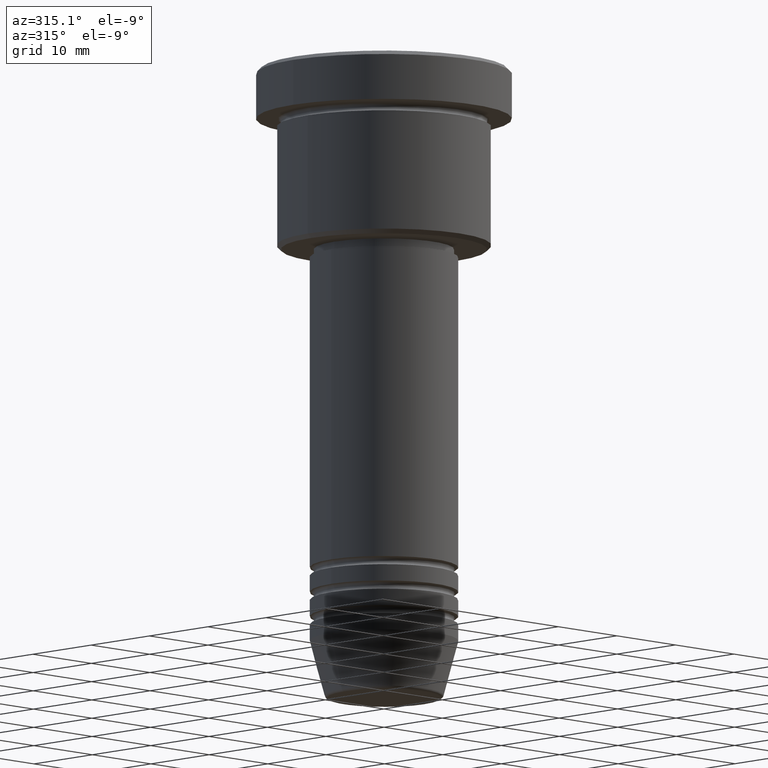
[diagram: clean part render]
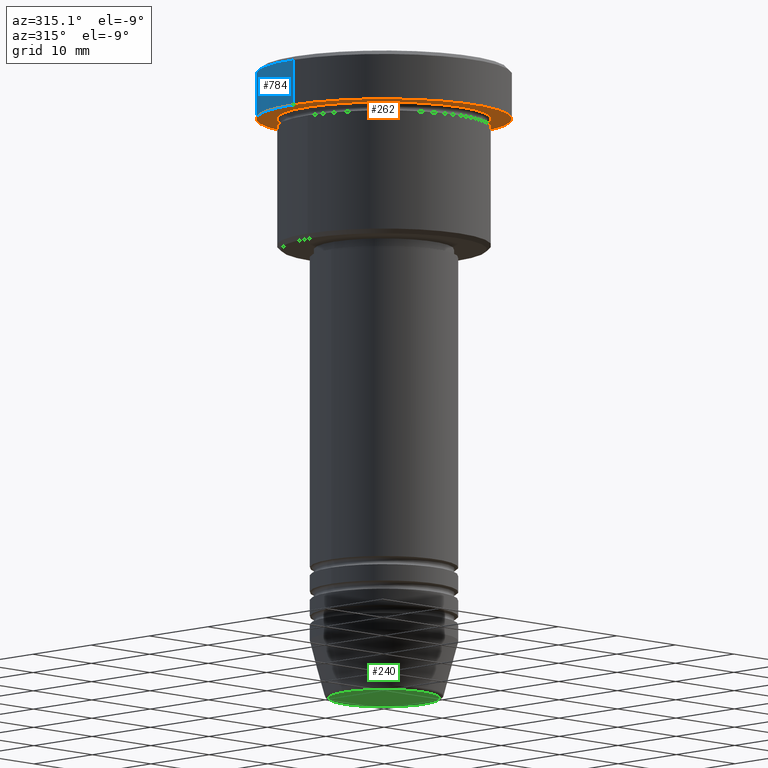
[diagram: same view with three faces highlighted in distinct colors, each labeled with its STEP entity id]
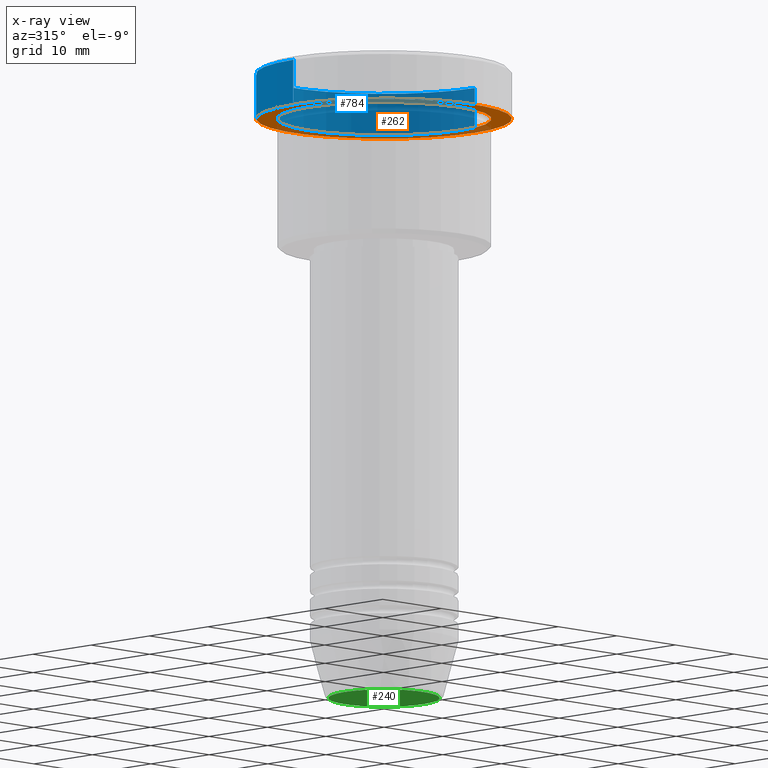
[diagram: x-ray of the same camera — body ghosted, the three highlighted faces saturated]
A machine part, auxiliary view with three faces highlighted in distinct colors.
The next image is the same camera in x-ray (body ghosted, the three faces saturated) — at least one of them is partly hidden behind the body in this view.
Their STEP definitions:

[orange] entity #262 — the highlighted planar face has unit normal (0, 0, -1).
#23 = AXIS2_PLACEMENT_3D ( 'NONE', #802, #714, #625 ) ;
#25 = CIRCLE ( 'NONE', #279, 13.00000000000000000 ) ;
#33 = VERTEX_POINT ( 'NONE', #498 ) ;
#36 = CARTESIAN_POINT ( 'NONE',  ( 0.000000000000000000, 0.000000000000000000, -5.999999999999995559 ) ) ;
#41 = ORIENTED_EDGE ( 'NONE', *, *, #1043, .T. ) ;
#46 = CIRCLE ( 'NONE', #1058, 13.00000000000000000 ) ;
#74 = EDGE_CURVE ( 'NONE', #33, #748, #1072, .T. ) ;
#127 = CIRCLE ( 'NONE', #1132, 15.50000000000000000 ) ;
#133 = DIRECTION ( 'NONE',  ( -0.000000000000000000, -0.000000000000000000, 1.000000000000000000 ) ) ;
#179 = CARTESIAN_POINT ( 'NONE',  ( 13.00000000000000000, 1.592040838891559095E-15, -5.999999999999994671 ) ) ;
#198 = CARTESIAN_POINT ( 'NONE',  ( 0.000000000000000000, 0.000000000000000000, -5.999999999999995559 ) ) ;
#211 = DIRECTION ( 'NONE',  ( -1.000000000000000000, 0.000000000000000000, 0.000000000000000000 ) ) ;
#216 = EDGE_LOOP ( 'NONE', ( #41, #776 ) ) ;
#220 = PLANE ( 'NONE',  #23 ) ;
#237 = VERTEX_POINT ( 'NONE', #806 ) ;
#252 = CARTESIAN_POINT ( 'NONE',  ( -15.50000000000000000, 1.898202538678397557E-15, -5.999999999999995559 ) ) ;
#262 = ADVANCED_FACE ( 'NONE', ( #399, #762 ), #220, .T. ) ;
#279 = AXIS2_PLACEMENT_3D ( 'NONE', #36, #842, #497 ) ;
#365 = DIRECTION ( 'NONE',  ( -0.000000000000000000, -0.000000000000000000, 1.000000000000000000 ) ) ;
#399 = FACE_BOUND ( 'NONE', #216, .T. ) ;
#497 = DIRECTION ( 'NONE',  ( -1.000000000000000000, 0.000000000000000000, 0.000000000000000000 ) ) ;
#498 = CARTESIAN_POINT ( 'NONE',  ( 15.50000000000000000, 0.000000000000000000, -5.999999999999995559 ) ) ;
#551 = DIRECTION ( 'NONE',  ( 1.000000000000000000, 0.000000000000000000, 0.000000000000000000 ) ) ;
#559 = EDGE_LOOP ( 'NONE', ( #846, #712 ) ) ;
#604 = EDGE_CURVE ( 'NONE', #856, #237, #25, .T. ) ;
#625 = DIRECTION ( 'NONE',  ( -1.000000000000000000, 0.000000000000000000, -0.000000000000000000 ) ) ;
#712 = ORIENTED_EDGE ( 'NONE', *, *, #954, .F. ) ;
#714 = DIRECTION ( 'NONE',  ( 0.000000000000000000, 0.000000000000000000, -1.000000000000000000 ) ) ;
#748 = VERTEX_POINT ( 'NONE', #252 ) ;
#762 = FACE_OUTER_BOUND ( 'NONE', #559, .T. ) ;
#776 = ORIENTED_EDGE ( 'NONE', *, *, #604, .T. ) ;
#802 = CARTESIAN_POINT ( 'NONE',  ( 0.000000000000000000, 15.50000000000000000, -5.999999999999995559 ) ) ;
#806 = CARTESIAN_POINT ( 'NONE',  ( -13.00000000000000000, 0.000000000000000000, -5.999999999999994671 ) ) ;
#842 = DIRECTION ( 'NONE',  ( -0.000000000000000000, -0.000000000000000000, 1.000000000000000000 ) ) ;
#845 = AXIS2_PLACEMENT_3D ( 'NONE', #1146, #970, #886 ) ;
#846 = ORIENTED_EDGE ( 'NONE', *, *, #74, .F. ) ;
#856 = VERTEX_POINT ( 'NONE', #179 ) ;
#886 = DIRECTION ( 'NONE',  ( 1.000000000000000000, 0.000000000000000000, 0.000000000000000000 ) ) ;
#954 = EDGE_CURVE ( 'NONE', #748, #33, #127, .T. ) ;
#970 = DIRECTION ( 'NONE',  ( -0.000000000000000000, -0.000000000000000000, 1.000000000000000000 ) ) ;
#1043 = EDGE_CURVE ( 'NONE', #237, #856, #46, .T. ) ;
#1058 = AXIS2_PLACEMENT_3D ( 'NONE', #198, #133, #211 ) ;
#1072 = CIRCLE ( 'NONE', #845, 15.50000000000000000 ) ;
#1132 = AXIS2_PLACEMENT_3D ( 'NONE', #1179, #365, #551 ) ;
#1146 = CARTESIAN_POINT ( 'NONE',  ( 0.000000000000000000, 0.000000000000000000, -5.999999999999995559 ) ) ;
#1179 = CARTESIAN_POINT ( 'NONE',  ( 0.000000000000000000, 0.000000000000000000, -5.999999999999995559 ) ) ;

[blue] entity #784 — the highlighted cylindrical surface (partial cylindrical patch) has radius 15.5 mm, axis along (-0, -0, 1).
#5 = AXIS2_PLACEMENT_3D ( 'NONE', #439, #968, #697 ) ;
#15 = DIRECTION ( 'NONE',  ( 1.000000000000000000, 0.000000000000000000, 0.000000000000000000 ) ) ;
#33 = VERTEX_POINT ( 'NONE', #498 ) ;
#47 = FACE_OUTER_BOUND ( 'NONE', #407, .T. ) ;
#52 = CYLINDRICAL_SURFACE ( 'NONE', #5, 15.50000000000000000 ) ;
#74 = EDGE_CURVE ( 'NONE', #33, #748, #1072, .T. ) ;
#112 = EDGE_CURVE ( 'NONE', #482, #850, #1053, .T. ) ;
#182 = VECTOR ( 'NONE', #930, 1000.000000000000000 ) ;
#252 = CARTESIAN_POINT ( 'NONE',  ( -15.50000000000000000, 1.898202538678397557E-15, -5.999999999999995559 ) ) ;
#263 = ORIENTED_EDGE ( 'NONE', *, *, #630, .T. ) ;
#268 = CARTESIAN_POINT ( 'NONE',  ( 0.000000000000000000, 0.000000000000000000, -0.4999999999999987232 ) ) ;
#407 = EDGE_LOOP ( 'NONE', ( #875, #263, #1164, #1156 ) ) ;
#439 = CARTESIAN_POINT ( 'NONE',  ( 0.000000000000000000, 0.000000000000000000, 0.000000000000000000 ) ) ;
#482 = VERTEX_POINT ( 'NONE', #648 ) ;
#498 = CARTESIAN_POINT ( 'NONE',  ( 15.50000000000000000, 0.000000000000000000, -5.999999999999995559 ) ) ;
#540 = AXIS2_PLACEMENT_3D ( 'NONE', #268, #1170, #15 ) ;
#565 = CARTESIAN_POINT ( 'NONE',  ( -15.50000000000000000, 1.898202538678397557E-15, 0.000000000000000000 ) ) ;
#572 = DIRECTION ( 'NONE',  ( -0.000000000000000000, -0.000000000000000000, 1.000000000000000000 ) ) ;
#630 = EDGE_CURVE ( 'NONE', #748, #482, #1133, .T. ) ;
#648 = CARTESIAN_POINT ( 'NONE',  ( -15.50000000000000000, 1.898202538678397557E-15, -0.4999999999999987232 ) ) ;
#657 = VECTOR ( 'NONE', #572, 1000.000000000000000 ) ;
#697 = DIRECTION ( 'NONE',  ( 1.000000000000000000, 0.000000000000000000, 0.000000000000000000 ) ) ;
#748 = VERTEX_POINT ( 'NONE', #252 ) ;
#753 = LINE ( 'NONE', #932, #657 ) ;
#784 = ADVANCED_FACE ( 'NONE', ( #47 ), #52, .T. ) ;
#845 = AXIS2_PLACEMENT_3D ( 'NONE', #1146, #970, #886 ) ;
#850 = VERTEX_POINT ( 'NONE', #1174 ) ;
#875 = ORIENTED_EDGE ( 'NONE', *, *, #74, .T. ) ;
#886 = DIRECTION ( 'NONE',  ( 1.000000000000000000, 0.000000000000000000, 0.000000000000000000 ) ) ;
#930 = DIRECTION ( 'NONE',  ( -0.000000000000000000, -0.000000000000000000, 1.000000000000000000 ) ) ;
#932 = CARTESIAN_POINT ( 'NONE',  ( 15.50000000000000000, 0.000000000000000000, 0.000000000000000000 ) ) ;
#968 = DIRECTION ( 'NONE',  ( -0.000000000000000000, -0.000000000000000000, 1.000000000000000000 ) ) ;
#970 = DIRECTION ( 'NONE',  ( -0.000000000000000000, -0.000000000000000000, 1.000000000000000000 ) ) ;
#1053 = CIRCLE ( 'NONE', #540, 15.50000000000000000 ) ;
#1067 = EDGE_CURVE ( 'NONE', #33, #850, #753, .T. ) ;
#1072 = CIRCLE ( 'NONE', #845, 15.50000000000000000 ) ;
#1133 = LINE ( 'NONE', #565, #182 ) ;
#1146 = CARTESIAN_POINT ( 'NONE',  ( 0.000000000000000000, 0.000000000000000000, -5.999999999999995559 ) ) ;
#1156 = ORIENTED_EDGE ( 'NONE', *, *, #1067, .F. ) ;
#1164 = ORIENTED_EDGE ( 'NONE', *, *, #112, .T. ) ;
#1170 = DIRECTION ( 'NONE',  ( 0.000000000000000000, 0.000000000000000000, -1.000000000000000000 ) ) ;
#1174 = CARTESIAN_POINT ( 'NONE',  ( 15.50000000000000000, 0.000000000000000000, -0.4999999999999987232 ) ) ;

[green] entity #240 — the highlighted planar face has unit normal (0, -0, 1).
#8 = DIRECTION ( 'NONE',  ( 0.000000000000000000, 0.000000000000000000, -1.000000000000000000 ) ) ;
#20 = DIRECTION ( 'NONE',  ( 0.000000000000000000, 0.000000000000000000, -1.000000000000000000 ) ) ;
#108 = DIRECTION ( 'NONE',  ( 0.000000000000000000, -0.000000000000000000, 1.000000000000000000 ) ) ;
#204 = EDGE_LOOP ( 'NONE', ( #941, #1028 ) ) ;
#240 = ADVANCED_FACE ( 'NONE', ( #526 ), #659, .F. ) ;
#330 = CARTESIAN_POINT ( 'NONE',  ( -6.740692158992653837, 8.550696569392682723E-16, -77.00000000000001421 ) ) ;
#356 = CIRCLE ( 'NONE', #392, 6.740692158992653837 ) ;
#392 = AXIS2_PLACEMENT_3D ( 'NONE', #738, #8, #722 ) ;
#396 = CARTESIAN_POINT ( 'NONE',  ( 6.740692158992653837, 0.000000000000000000, -77.00000000000001421 ) ) ;
#475 = CARTESIAN_POINT ( 'NONE',  ( 0.000000000000000000, 0.000000000000000000, -77.00000000000001421 ) ) ;
#526 = FACE_OUTER_BOUND ( 'NONE', #204, .T. ) ;
#616 = EDGE_CURVE ( 'NONE', #1089, #704, #830, .T. ) ;
#659 = PLANE ( 'NONE',  #1111 ) ;
#691 = AXIS2_PLACEMENT_3D ( 'NONE', #475, #20, #750 ) ;
#704 = VERTEX_POINT ( 'NONE', #330 ) ;
#722 = DIRECTION ( 'NONE',  ( 1.000000000000000000, 0.000000000000000000, 0.000000000000000000 ) ) ;
#738 = CARTESIAN_POINT ( 'NONE',  ( 0.000000000000000000, 0.000000000000000000, -77.00000000000001421 ) ) ;
#743 = DIRECTION ( 'NONE',  ( 1.000000000000000000, 0.000000000000000000, 0.000000000000000000 ) ) ;
#750 = DIRECTION ( 'NONE',  ( 1.000000000000000000, 0.000000000000000000, 0.000000000000000000 ) ) ;
#827 = CARTESIAN_POINT ( 'NONE',  ( 0.000000000000000000, 0.000000000000000000, -77.00000000000001421 ) ) ;
#830 = CIRCLE ( 'NONE', #691, 6.740692158992653837 ) ;
#864 = EDGE_CURVE ( 'NONE', #704, #1089, #356, .T. ) ;
#941 = ORIENTED_EDGE ( 'NONE', *, *, #616, .T. ) ;
#1028 = ORIENTED_EDGE ( 'NONE', *, *, #864, .T. ) ;
#1089 = VERTEX_POINT ( 'NONE', #396 ) ;
#1111 = AXIS2_PLACEMENT_3D ( 'NONE', #827, #108, #743 ) ;